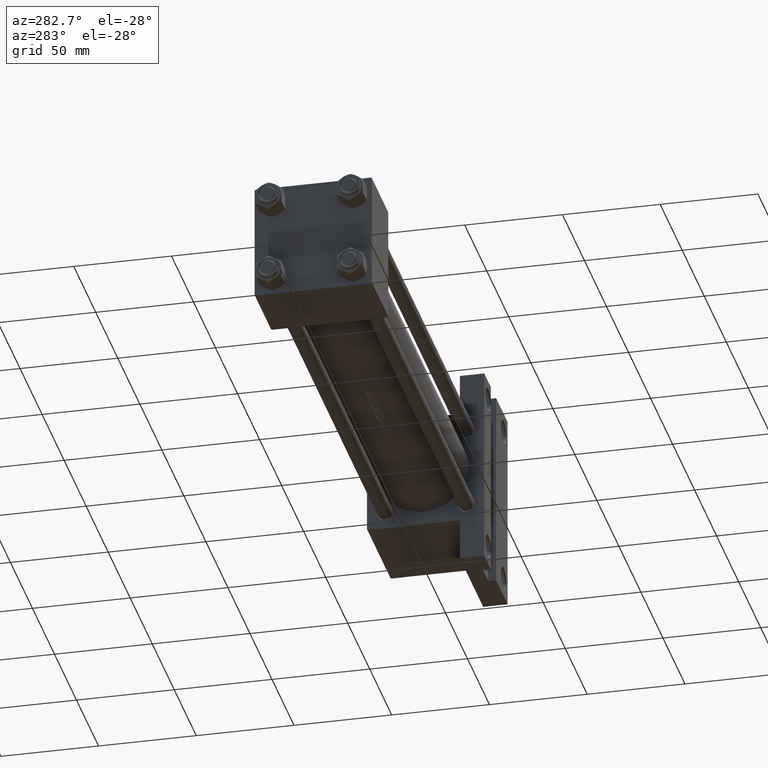
[diagram: clean part render]
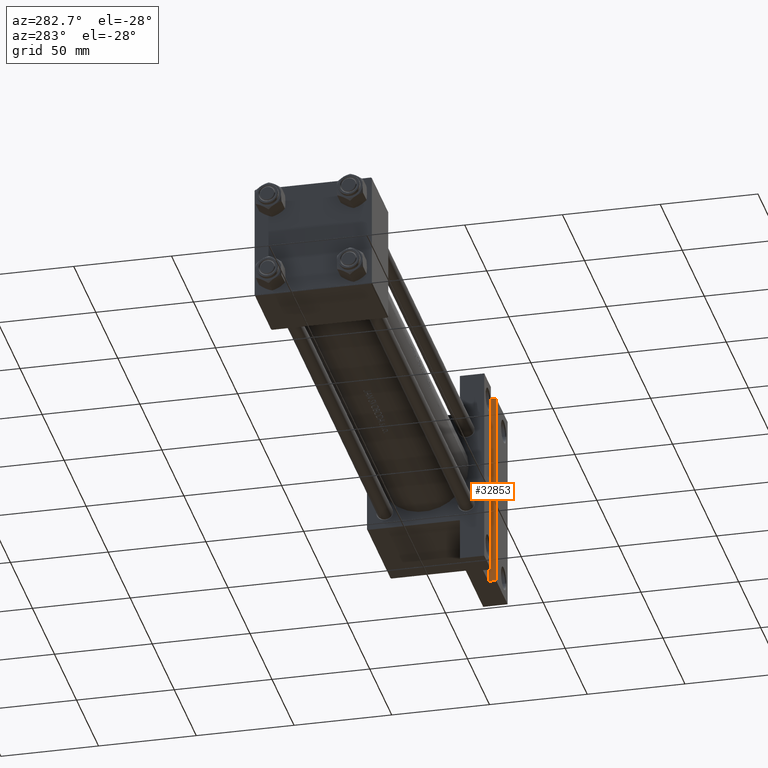
[diagram: same view with one face highlighted and labeled with its STEP entity id]
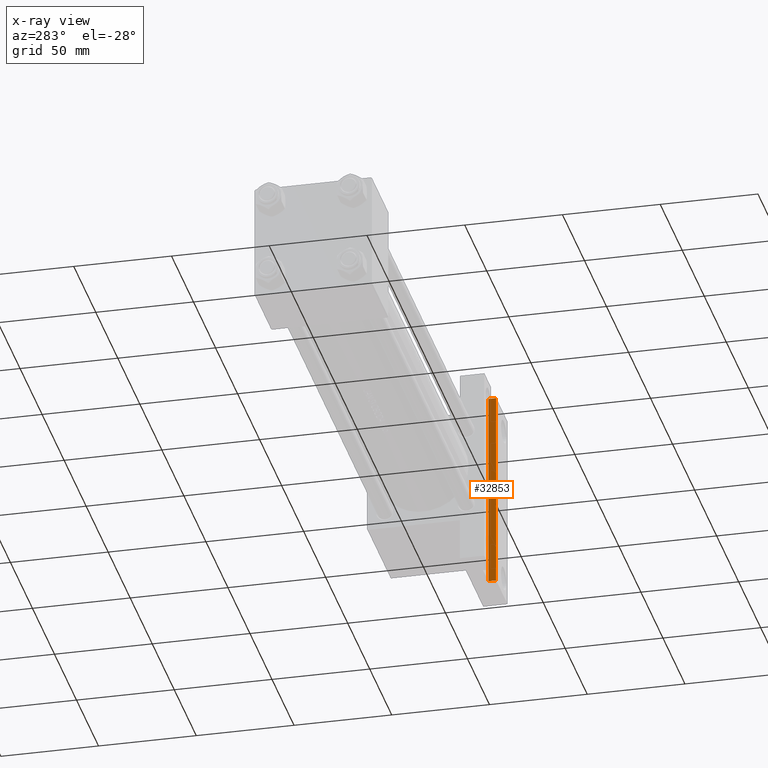
[diagram: x-ray of the same camera — body ghosted, the highlighted face saturated]
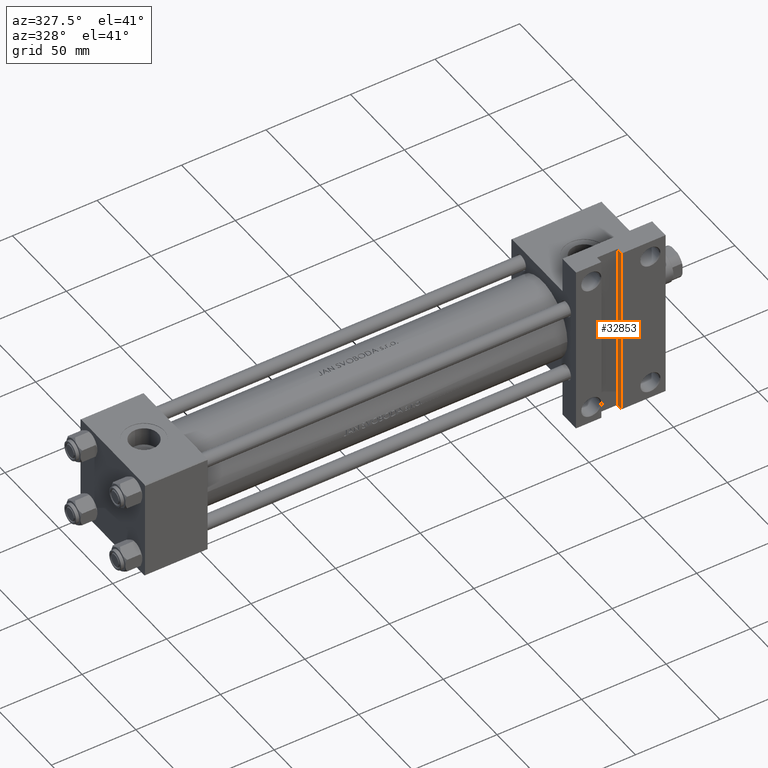
[diagram: same view with one face highlighted and labeled with its STEP entity id]
A machine part, auxiliary view. The second image highlights one B-rep face of the part: STEP entity #32853.
The next image is the same camera in x-ray: the body ghosted, the highlighted face saturated — about 0% of this face is hidden behind the body in this view.
A second angle (auxiliary view) of the same face is appended — the face is thin or edge-on in the first view.
In plain terms, the highlighted planar face has unit normal (1, 0, 0).
Its self-contained STEP definition (entity closure, byte-faithful):
#347 = CARTESIAN_POINT ( 'NONE',  ( 282.0000000000000000, 51.49999999999997868, -25.99999999999999645 ) ) ;
#555 = EDGE_CURVE ( 'NONE', #10796, #42846, #38591, .T. ) ;
#821 = ORIENTED_EDGE ( 'NONE', *, *, #19715, .F. ) ;
#867 = DIRECTION ( 'NONE',  ( -0.000000000000000000, -1.000000000000000000, -0.000000000000000000 ) ) ;
#1123 = CARTESIAN_POINT ( 'NONE',  ( 282.0000000000000000, -51.49999999999997158, -25.99999999999999645 ) ) ;
#1200 = AXIS2_PLACEMENT_3D ( 'NONE', #21433, #2476, #24648 ) ;
#1506 = EDGE_LOOP ( 'NONE', ( #25717, #2654, #821, #43660 ) ) ;
#1599 = CARTESIAN_POINT ( 'NONE',  ( 282.0000000000000000, -51.50000000000002132, -25.99999999999999645 ) ) ;
#2476 = DIRECTION ( 'NONE',  ( 1.000000000000000000, 0.000000000000000000, 0.000000000000000000 ) ) ;
#2654 = ORIENTED_EDGE ( 'NONE', *, *, #555, .F. ) ;
#7277 = VERTEX_POINT ( 'NONE', #18305 ) ;
#8863 = CARTESIAN_POINT ( 'NONE',  ( 282.0000000000000000, 51.49999999999997868, -29.99999999999999645 ) ) ;
#9972 = VECTOR ( 'NONE', #48672, 1000.000000000000000 ) ;
#10730 = LINE ( 'NONE', #347, #9972 ) ;
#10796 = VERTEX_POINT ( 'NONE', #1599 ) ;
#17495 = PLANE ( 'NONE',  #1200 ) ;
#18305 = CARTESIAN_POINT ( 'NONE',  ( 282.0000000000000000, 51.49999999999997868, -25.99999999999999645 ) ) ;
#19715 = EDGE_CURVE ( 'NONE', #7277, #10796, #38830, .T. ) ;
#20943 = FACE_OUTER_BOUND ( 'NONE', #1506, .T. ) ;
#21433 = CARTESIAN_POINT ( 'NONE',  ( 282.0000000000000000, -51.49999999999997158, -25.99999999999999645 ) ) ;
#22116 = VECTOR ( 'NONE', #867, 1000.000000000000000 ) ;
#22354 = EDGE_CURVE ( 'NONE', #45033, #42846, #41089, .T. ) ;
#22357 = CARTESIAN_POINT ( 'NONE',  ( 282.0000000000000000, -51.49999999999997158, -29.99999999999999645 ) ) ;
#24648 = DIRECTION ( 'NONE',  ( 0.000000000000000000, 0.000000000000000000, -1.000000000000000000 ) ) ;
#25717 = ORIENTED_EDGE ( 'NONE', *, *, #22354, .T. ) ;
#30405 = CARTESIAN_POINT ( 'NONE',  ( 282.0000000000000000, -51.49999999999997158, -29.99999999999999645 ) ) ;
#30889 = VECTOR ( 'NONE', #48505, 1000.000000000000000 ) ;
#31912 = CARTESIAN_POINT ( 'NONE',  ( 282.0000000000000000, -51.49999999999997158, -25.99999999999999645 ) ) ;
#32853 = ADVANCED_FACE ( 'NONE', ( #20943 ), #17495, .F. ) ;
#36248 = EDGE_CURVE ( 'NONE', #7277, #45033, #10730, .T. ) ;
#37161 = VECTOR ( 'NONE', #38357, 1000.000000000000000 ) ;
#38357 = DIRECTION ( 'NONE',  ( -0.000000000000000000, -0.000000000000000000, -1.000000000000000000 ) ) ;
#38591 = LINE ( 'NONE', #1123, #37161 ) ;
#38830 = LINE ( 'NONE', #31912, #22116 ) ;
#41089 = LINE ( 'NONE', #22357, #30889 ) ;
#42846 = VERTEX_POINT ( 'NONE', #30405 ) ;
#43660 = ORIENTED_EDGE ( 'NONE', *, *, #36248, .T. ) ;
#45033 = VERTEX_POINT ( 'NONE', #8863 ) ;
#48505 = DIRECTION ( 'NONE',  ( -0.000000000000000000, -1.000000000000000000, -0.000000000000000000 ) ) ;
#48672 = DIRECTION ( 'NONE',  ( -0.000000000000000000, -0.000000000000000000, -1.000000000000000000 ) ) ;